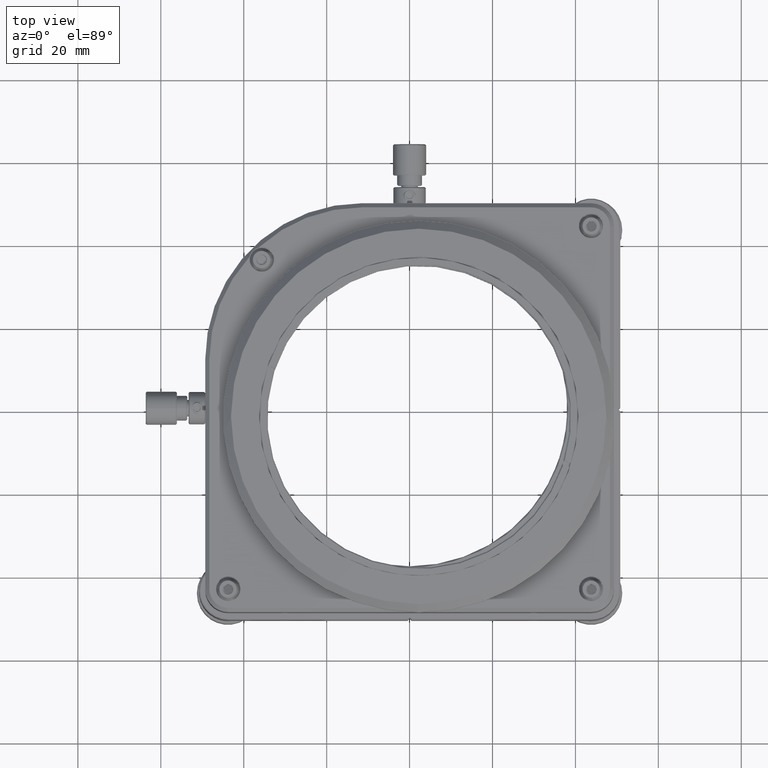
[diagram: clean part render]
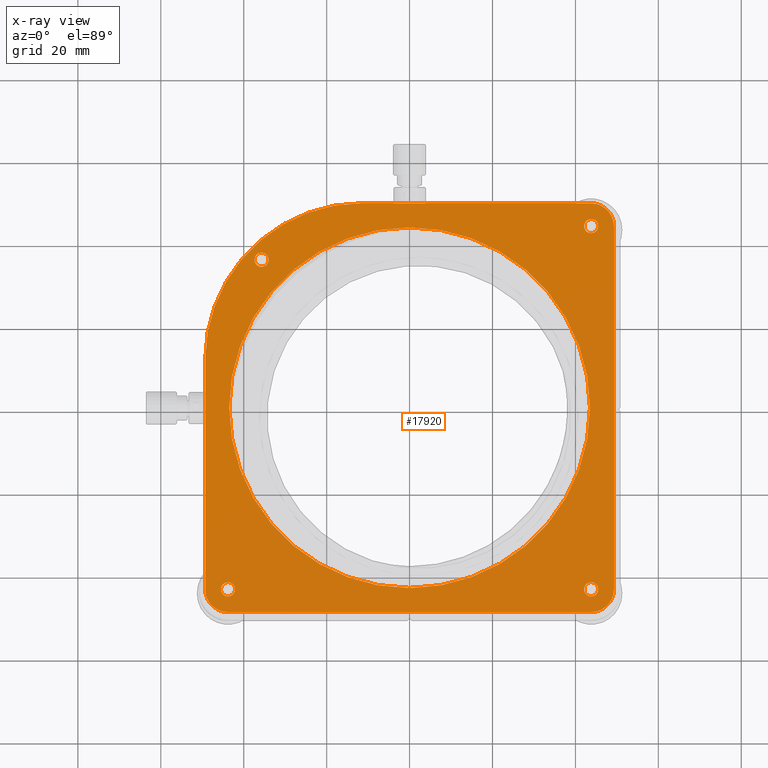
[diagram: x-ray — body ghosted, one internal face saturated and labeled with its STEP entity id]
A machine part, top view, then the same camera in x-ray: the body is ghosted and one INTERNAL B-rep face — a face not visible from any outside direction — is saturated and labeled: STEP entity #17920.
In plain terms, the highlighted planar face has unit normal (0, 0, 1).
Its self-contained STEP definition (entity closure, byte-faithful):
#17 = CARTESIAN_POINT ( 'NONE',  ( -11.49999999999998224, 49.29999999999999005, 27.50000000000000000 ) ) ;
#1274 = CARTESIAN_POINT ( 'NONE',  ( 43.80000000000001137, -49.30000000000001137, 27.50000000000000000 ) ) ;
#1349 = DIRECTION ( 'NONE',  ( -1.000000000000000000, 0.000000000000000000, 0.000000000000000000 ) ) ;
#1395 = AXIS2_PLACEMENT_3D ( 'NONE', #28305, #23965, #1899 ) ;
#1400 = CIRCLE ( 'NONE', #26112, 43.50000000000000711 ) ;
#1573 = DIRECTION ( 'NONE',  ( 1.000000000000000000, 0.000000000000000000, 0.000000000000000000 ) ) ;
#1606 = FACE_BOUND ( 'NONE', #34858, .T. ) ;
#1623 = VERTEX_POINT ( 'NONE', #34357 ) ;
#1899 = DIRECTION ( 'NONE',  ( 1.000000000000000000, 0.000000000000000000, 0.000000000000000000 ) ) ;
#2562 = EDGE_CURVE ( 'NONE', #36144, #17502, #37736, .T. ) ;
#2697 = CARTESIAN_POINT ( 'NONE',  ( -49.29999999999998295, 11.49999999999998579, 27.50000000000000000 ) ) ;
#2806 = AXIS2_PLACEMENT_3D ( 'NONE', #44501, #36546, #36330 ) ;
#2957 = EDGE_CURVE ( 'NONE', #10323, #26356, #1400, .T. ) ;
#3257 = EDGE_CURVE ( 'NONE', #39410, #3905, #13028, .T. ) ;
#3297 = DIRECTION ( 'NONE',  ( 1.000000000000000000, 0.000000000000000000, 0.000000000000000000 ) ) ;
#3383 = EDGE_CURVE ( 'NONE', #38823, #28840, #40114, .T. ) ;
#3649 = VERTEX_POINT ( 'NONE', #40548 ) ;
#3705 = AXIS2_PLACEMENT_3D ( 'NONE', #42737, #42520, #23629 ) ;
#3905 = VERTEX_POINT ( 'NONE', #2697 ) ;
#4373 = VERTEX_POINT ( 'NONE', #33651 ) ;
#4758 = CARTESIAN_POINT ( 'NONE',  ( 2.125036258025834758E-14, 49.29999999999999005, 27.50000000000000000 ) ) ;
#5366 = CARTESIAN_POINT ( 'NONE',  ( -49.29999999999998295, -43.80000000000001847, 27.50000000000000000 ) ) ;
#5372 = DIRECTION ( 'NONE',  ( -1.000000000000000000, 0.000000000000000000, 0.000000000000000000 ) ) ;
#5887 = CARTESIAN_POINT ( 'NONE',  ( 43.80000000000001137, -43.80000000000000426, 27.50000000000000000 ) ) ;
#5953 = FACE_BOUND ( 'NONE', #12760, .T. ) ;
#6191 = FACE_BOUND ( 'NONE', #24890, .T. ) ;
#6354 = DIRECTION ( 'NONE',  ( -0.000000000000000000, -0.000000000000000000, -1.000000000000000000 ) ) ;
#6586 = LINE ( 'NONE', #18483, #33762 ) ;
#6735 = AXIS2_PLACEMENT_3D ( 'NONE', #5887, #6354, #13183 ) ;
#7671 = LINE ( 'NONE', #8127, #45274 ) ;
#8127 = CARTESIAN_POINT ( 'NONE',  ( -49.29999999999998295, -3.469446952458485168E-15, 27.50000000000000000 ) ) ;
#8822 = DIRECTION ( 'NONE',  ( -0.000000000000000000, -0.000000000000000000, 1.000000000000000000 ) ) ;
#8998 = VERTEX_POINT ( 'NONE', #5366 ) ;
#9126 = VECTOR ( 'NONE', #26807, 1000.000000000000000 ) ;
#9465 = DIRECTION ( 'NONE',  ( 1.000000000000000000, 0.000000000000000000, 0.000000000000000000 ) ) ;
#9610 = EDGE_CURVE ( 'NONE', #28840, #38823, #23701, .T. ) ;
#9798 = CARTESIAN_POINT ( 'NONE',  ( -43.79999999999998295, -43.80000000000001847, 27.50000000000000000 ) ) ;
#9842 = CARTESIAN_POINT ( 'NONE',  ( 2.125036258025834758E-14, -3.469446952458485168E-15, 27.50000000000000000 ) ) ;
#9879 = CIRCLE ( 'NONE', #20749, 1.700000000000000178 ) ;
#9908 = CIRCLE ( 'NONE', #3705, 5.499999999999998224 ) ;
#9956 = ORIENTED_EDGE ( 'NONE', *, *, #16379, .F. ) ;
#10169 = EDGE_CURVE ( 'NONE', #8998, #4373, #16793, .T. ) ;
#10230 = ORIENTED_EDGE ( 'NONE', *, *, #9610, .F. ) ;
#10323 = VERTEX_POINT ( 'NONE', #34157 ) ;
#10350 = CIRCLE ( 'NONE', #30457, 43.50000000000000711 ) ;
#10748 = EDGE_CURVE ( 'NONE', #30808, #3649, #9879, .T. ) ;
#10924 = ORIENTED_EDGE ( 'NONE', *, *, #10169, .F. ) ;
#10954 = CARTESIAN_POINT ( 'NONE',  ( 45.50000000000000711, 43.79999999999999005, 27.50000000000000000 ) ) ;
#11099 = CARTESIAN_POINT ( 'NONE',  ( -35.69999999999999574, 35.69999999999999574, 27.50000000000000000 ) ) ;
#11339 = EDGE_CURVE ( 'NONE', #38133, #29386, #9908, .T. ) ;
#11718 = EDGE_CURVE ( 'NONE', #17502, #38133, #28140, .T. ) ;
#12139 = CIRCLE ( 'NONE', #6735, 1.700000000000000178 ) ;
#12455 = DIRECTION ( 'NONE',  ( 1.000000000000000000, 0.000000000000000000, 0.000000000000000000 ) ) ;
#12593 = DIRECTION ( 'NONE',  ( -0.000000000000000000, -0.000000000000000000, 1.000000000000000000 ) ) ;
#12652 = ORIENTED_EDGE ( 'NONE', *, *, #2957, .F. ) ;
#12759 = DIRECTION ( 'NONE',  ( 0.000000000000000000, 0.000000000000000000, 1.000000000000000000 ) ) ;
#12760 = EDGE_LOOP ( 'NONE', ( #44210, #20315 ) ) ;
#13028 = CIRCLE ( 'NONE', #23083, 37.79999999999999716 ) ;
#13183 = DIRECTION ( 'NONE',  ( 1.000000000000000000, 0.000000000000000000, 0.000000000000000000 ) ) ;
#13325 = DIRECTION ( 'NONE',  ( -1.000000000000000000, 0.000000000000000000, 0.000000000000000000 ) ) ;
#13487 = FACE_OUTER_BOUND ( 'NONE', #47503, .T. ) ;
#13547 = AXIS2_PLACEMENT_3D ( 'NONE', #27208, #15394, #12455 ) ;
#14280 = DIRECTION ( 'NONE',  ( -0.000000000000000000, -0.000000000000000000, -1.000000000000000000 ) ) ;
#15074 = ORIENTED_EDGE ( 'NONE', *, *, #32843, .F. ) ;
#15394 = DIRECTION ( 'NONE',  ( -0.000000000000000000, -0.000000000000000000, -1.000000000000000000 ) ) ;
#15397 = CARTESIAN_POINT ( 'NONE',  ( 43.80000000000001137, -43.80000000000000426, 27.50000000000000000 ) ) ;
#15432 = CARTESIAN_POINT ( 'NONE',  ( 49.30000000000000426, 43.79999999999998295, 27.50000000000000000 ) ) ;
#15844 = AXIS2_PLACEMENT_3D ( 'NONE', #16817, #42704, #46822 ) ;
#16176 = CARTESIAN_POINT ( 'NONE',  ( 43.80000000000000426, 49.29999999999999005, 27.50000000000000000 ) ) ;
#16371 = ORIENTED_EDGE ( 'NONE', *, *, #11339, .F. ) ;
#16379 = EDGE_CURVE ( 'NONE', #3905, #8998, #7671, .T. ) ;
#16509 = CARTESIAN_POINT ( 'NONE',  ( 2.125036258025834758E-14, -3.469446952458485168E-15, 27.50000000000000000 ) ) ;
#16512 = EDGE_LOOP ( 'NONE', ( #47266, #30598 ) ) ;
#16793 = CIRCLE ( 'NONE', #38462, 5.499999999999998224 ) ;
#16817 = CARTESIAN_POINT ( 'NONE',  ( -35.69999999999999574, 35.69999999999999574, 27.50000000000000000 ) ) ;
#16846 = ORIENTED_EDGE ( 'NONE', *, *, #11718, .F. ) ;
#17087 = VERTEX_POINT ( 'NONE', #10954 ) ;
#17502 = VERTEX_POINT ( 'NONE', #18165 ) ;
#17920 = ADVANCED_FACE ( 'NONE', ( #13487, #6191, #30264, #5953, #43014, #1606 ), #31881, .F. ) ;
#18165 = CARTESIAN_POINT ( 'NONE',  ( 49.30000000000001137, -43.80000000000000426, 27.50000000000000000 ) ) ;
#18483 = CARTESIAN_POINT ( 'NONE',  ( 2.125036258025834758E-14, -49.30000000000001847, 27.50000000000000000 ) ) ;
#20315 = ORIENTED_EDGE ( 'NONE', *, *, #44301, .F. ) ;
#20502 = CARTESIAN_POINT ( 'NONE',  ( 45.50000000000001421, -43.80000000000000426, 27.50000000000000000 ) ) ;
#20696 = AXIS2_PLACEMENT_3D ( 'NONE', #35395, #12593, #13325 ) ;
#20749 = AXIS2_PLACEMENT_3D ( 'NONE', #11099, #14280, #43560 ) ;
#21648 = EDGE_CURVE ( 'NONE', #43321, #27658, #42275, .T. ) ;
#21775 = CARTESIAN_POINT ( 'NONE',  ( -37.39999999999999858, 35.69999999999999574, 27.50000000000000000 ) ) ;
#21963 = DIRECTION ( 'NONE',  ( -0.000000000000000000, -0.000000000000000000, -1.000000000000000000 ) ) ;
#22357 = DIRECTION ( 'NONE',  ( 1.000000000000000000, 0.000000000000000000, 0.000000000000000000 ) ) ;
#22472 = CARTESIAN_POINT ( 'NONE',  ( 43.50000000000002132, -3.469446952458485168E-15, 27.50000000000000000 ) ) ;
#22663 = CARTESIAN_POINT ( 'NONE',  ( -11.49999999999998224, 11.49999999999998579, 27.50000000000000000 ) ) ;
#23083 = AXIS2_PLACEMENT_3D ( 'NONE', #22663, #8822, #1349 ) ;
#23629 = DIRECTION ( 'NONE',  ( -1.000000000000000000, 0.000000000000000000, 0.000000000000000000 ) ) ;
#23701 = CIRCLE ( 'NONE', #2806, 1.700000000000000178 ) ;
#23965 = DIRECTION ( 'NONE',  ( -0.000000000000000000, -0.000000000000000000, -1.000000000000000000 ) ) ;
#24450 = ORIENTED_EDGE ( 'NONE', *, *, #34884, .F. ) ;
#24890 = EDGE_LOOP ( 'NONE', ( #35399, #12652 ) ) ;
#25437 = VECTOR ( 'NONE', #27415, 1000.000000000000000 ) ;
#25594 = ORIENTED_EDGE ( 'NONE', *, *, #21648, .F. ) ;
#26112 = AXIS2_PLACEMENT_3D ( 'NONE', #32646, #21963, #3297 ) ;
#26356 = VERTEX_POINT ( 'NONE', #22472 ) ;
#26807 = DIRECTION ( 'NONE',  ( -1.000000000000000000, -0.000000000000000000, -0.000000000000000000 ) ) ;
#27154 = CARTESIAN_POINT ( 'NONE',  ( -43.79999999999998295, -43.80000000000001847, 27.50000000000000000 ) ) ;
#27208 = CARTESIAN_POINT ( 'NONE',  ( 43.80000000000000426, 43.79999999999999005, 27.50000000000000000 ) ) ;
#27415 = DIRECTION ( 'NONE',  ( 0.000000000000000000, 1.000000000000000000, 0.000000000000000000 ) ) ;
#27465 = ORIENTED_EDGE ( 'NONE', *, *, #3257, .F. ) ;
#27658 = VERTEX_POINT ( 'NONE', #20502 ) ;
#28140 = LINE ( 'NONE', #31796, #25437 ) ;
#28305 = CARTESIAN_POINT ( 'NONE',  ( 43.80000000000000426, 43.79999999999999005, 27.50000000000000000 ) ) ;
#28440 = CARTESIAN_POINT ( 'NONE',  ( -45.49999999999998579, -43.80000000000001847, 27.50000000000000000 ) ) ;
#28840 = VERTEX_POINT ( 'NONE', #28440 ) ;
#29228 = EDGE_CURVE ( 'NONE', #26356, #10323, #10350, .T. ) ;
#29386 = VERTEX_POINT ( 'NONE', #16176 ) ;
#30264 = FACE_BOUND ( 'NONE', #16512, .T. ) ;
#30457 = AXIS2_PLACEMENT_3D ( 'NONE', #16509, #46048, #9465 ) ;
#30598 = ORIENTED_EDGE ( 'NONE', *, *, #10748, .F. ) ;
#30808 = VERTEX_POINT ( 'NONE', #21775 ) ;
#31231 = AXIS2_PLACEMENT_3D ( 'NONE', #9842, #12759, #39426 ) ;
#31796 = CARTESIAN_POINT ( 'NONE',  ( 49.30000000000001137, -3.469446952458485168E-15, 27.50000000000000000 ) ) ;
#31881 = PLANE ( 'NONE',  #31231 ) ;
#32107 = CIRCLE ( 'NONE', #15844, 1.700000000000000178 ) ;
#32646 = CARTESIAN_POINT ( 'NONE',  ( 2.125036258025834758E-14, -3.469446952458485168E-15, 27.50000000000000000 ) ) ;
#32843 = EDGE_CURVE ( 'NONE', #4373, #36144, #6586, .T. ) ;
#33325 = DIRECTION ( 'NONE',  ( 1.000000000000000000, 0.000000000000000000, 0.000000000000000000 ) ) ;
#33651 = CARTESIAN_POINT ( 'NONE',  ( -43.79999999999998295, -49.30000000000001847, 27.50000000000000000 ) ) ;
#33751 = ORIENTED_EDGE ( 'NONE', *, *, #43562, .F. ) ;
#33762 = VECTOR ( 'NONE', #22357, 1000.000000000000000 ) ;
#34157 = CARTESIAN_POINT ( 'NONE',  ( -43.49999999999998579, 1.857766623832501665E-15, 27.50000000000000000 ) ) ;
#34357 = CARTESIAN_POINT ( 'NONE',  ( 42.10000000000000853, 43.79999999999999005, 27.50000000000000000 ) ) ;
#34721 = AXIS2_PLACEMENT_3D ( 'NONE', #9798, #42509, #1573 ) ;
#34858 = EDGE_LOOP ( 'NONE', ( #38463, #10230 ) ) ;
#34884 = EDGE_CURVE ( 'NONE', #29386, #39410, #45468, .T. ) ;
#35395 = CARTESIAN_POINT ( 'NONE',  ( 43.80000000000001137, -43.80000000000000426, 27.50000000000000000 ) ) ;
#35399 = ORIENTED_EDGE ( 'NONE', *, *, #29228, .F. ) ;
#35932 = CARTESIAN_POINT ( 'NONE',  ( -42.09999999999998721, -43.80000000000001847, 27.50000000000000000 ) ) ;
#36144 = VERTEX_POINT ( 'NONE', #1274 ) ;
#36330 = DIRECTION ( 'NONE',  ( 1.000000000000000000, 0.000000000000000000, 0.000000000000000000 ) ) ;
#36546 = DIRECTION ( 'NONE',  ( -0.000000000000000000, -0.000000000000000000, -1.000000000000000000 ) ) ;
#36777 = DIRECTION ( 'NONE',  ( -0.000000000000000000, -1.000000000000000000, -0.000000000000000000 ) ) ;
#37736 = CIRCLE ( 'NONE', #20696, 5.499999999999998224 ) ;
#37877 = DIRECTION ( 'NONE',  ( -0.000000000000000000, -0.000000000000000000, 1.000000000000000000 ) ) ;
#38133 = VERTEX_POINT ( 'NONE', #15432 ) ;
#38462 = AXIS2_PLACEMENT_3D ( 'NONE', #27154, #37877, #5372 ) ;
#38463 = ORIENTED_EDGE ( 'NONE', *, *, #3383, .F. ) ;
#38823 = VERTEX_POINT ( 'NONE', #35932 ) ;
#39104 = CIRCLE ( 'NONE', #13547, 1.700000000000000178 ) ;
#39410 = VERTEX_POINT ( 'NONE', #17 ) ;
#39426 = DIRECTION ( 'NONE',  ( 1.000000000000000000, 0.000000000000000000, 0.000000000000000000 ) ) ;
#39508 = EDGE_LOOP ( 'NONE', ( #33751, #25594 ) ) ;
#40114 = CIRCLE ( 'NONE', #34721, 1.700000000000000178 ) ;
#40494 = EDGE_CURVE ( 'NONE', #17087, #1623, #39104, .T. ) ;
#40548 = CARTESIAN_POINT ( 'NONE',  ( -33.99999999999999289, 35.69999999999999574, 27.50000000000000000 ) ) ;
#40555 = EDGE_CURVE ( 'NONE', #3649, #30808, #32107, .T. ) ;
#42238 = ORIENTED_EDGE ( 'NONE', *, *, #2562, .F. ) ;
#42275 = CIRCLE ( 'NONE', #43022, 1.700000000000000178 ) ;
#42509 = DIRECTION ( 'NONE',  ( -0.000000000000000000, -0.000000000000000000, -1.000000000000000000 ) ) ;
#42520 = DIRECTION ( 'NONE',  ( -0.000000000000000000, -0.000000000000000000, 1.000000000000000000 ) ) ;
#42704 = DIRECTION ( 'NONE',  ( -0.000000000000000000, -0.000000000000000000, -1.000000000000000000 ) ) ;
#42737 = CARTESIAN_POINT ( 'NONE',  ( 43.80000000000000426, 43.79999999999999005, 27.50000000000000000 ) ) ;
#43014 = FACE_BOUND ( 'NONE', #39508, .T. ) ;
#43022 = AXIS2_PLACEMENT_3D ( 'NONE', #15397, #44929, #33325 ) ;
#43321 = VERTEX_POINT ( 'NONE', #46231 ) ;
#43560 = DIRECTION ( 'NONE',  ( 1.000000000000000000, 0.000000000000000000, 0.000000000000000000 ) ) ;
#43562 = EDGE_CURVE ( 'NONE', #27658, #43321, #12139, .T. ) ;
#43954 = CIRCLE ( 'NONE', #1395, 1.700000000000000178 ) ;
#44210 = ORIENTED_EDGE ( 'NONE', *, *, #40494, .F. ) ;
#44301 = EDGE_CURVE ( 'NONE', #1623, #17087, #43954, .T. ) ;
#44501 = CARTESIAN_POINT ( 'NONE',  ( -43.79999999999998295, -43.80000000000001847, 27.50000000000000000 ) ) ;
#44929 = DIRECTION ( 'NONE',  ( -0.000000000000000000, -0.000000000000000000, -1.000000000000000000 ) ) ;
#45274 = VECTOR ( 'NONE', #36777, 1000.000000000000000 ) ;
#45468 = LINE ( 'NONE', #4758, #9126 ) ;
#46048 = DIRECTION ( 'NONE',  ( -0.000000000000000000, -0.000000000000000000, -1.000000000000000000 ) ) ;
#46231 = CARTESIAN_POINT ( 'NONE',  ( 42.10000000000001563, -43.80000000000000426, 27.50000000000000000 ) ) ;
#46822 = DIRECTION ( 'NONE',  ( 1.000000000000000000, 0.000000000000000000, 0.000000000000000000 ) ) ;
#47266 = ORIENTED_EDGE ( 'NONE', *, *, #40555, .F. ) ;
#47503 = EDGE_LOOP ( 'NONE', ( #27465, #24450, #16371, #16846, #42238, #15074, #10924, #9956 ) ) ;